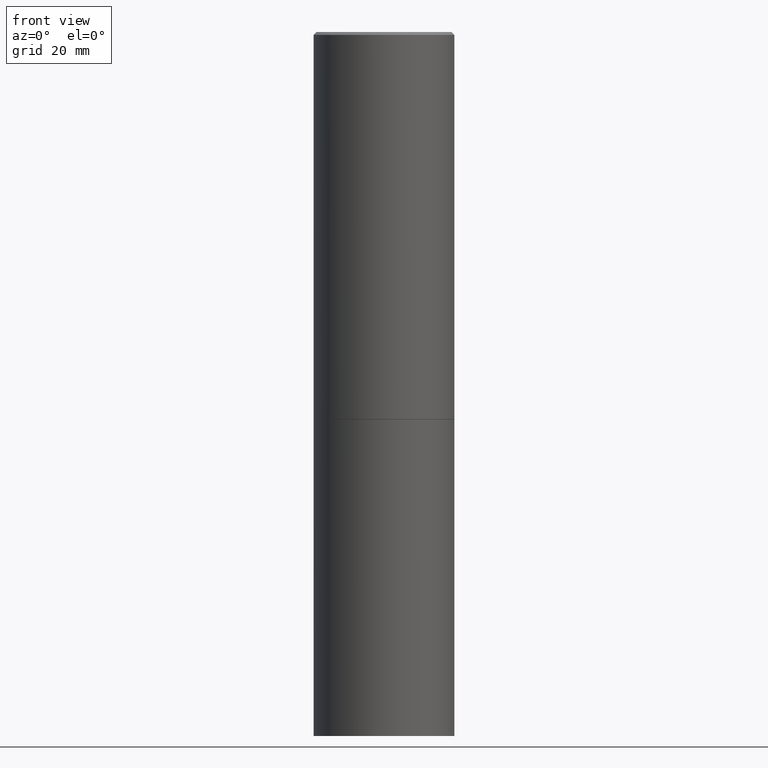
[diagram: clean part render]
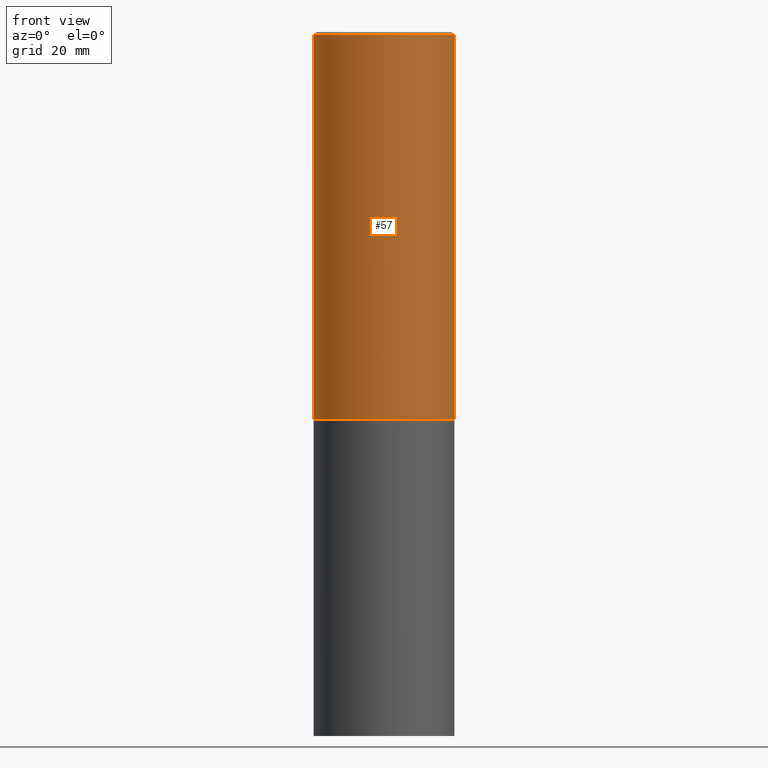
[diagram: same view with one face highlighted and labeled with its STEP entity id]
A machine part, front view. The second image highlights one B-rep face of the part: STEP entity #57.
In plain terms, the highlighted cylindrical surface (partial cylindrical patch) has radius 12.7 mm, axis along (-0, 0, 1).
Its self-contained STEP definition (entity closure, byte-faithful):
#4 = CIRCLE ( 'NONE', #289, 0.4999999999999996114 ) ;
#6 = AXIS2_PLACEMENT_3D ( 'NONE', #139, #183, #70 ) ;
#24 = DIRECTION ( 'NONE',  ( -2.445468806185136597E-29, 3.491481338843145583E-15, 1.000000000000000000 ) ) ;
#26 = VECTOR ( 'NONE', #64, 39.37007874015748143 ) ;
#41 = CARTESIAN_POINT ( 'NONE',  ( -0.4999999999999996114, 3.421651712066267296E-15, -0.02000000000000010797 ) ) ;
#49 = VERTEX_POINT ( 'NONE', #61 ) ;
#54 = DIRECTION ( 'NONE',  ( -2.445468806185136877E-29, 3.491481338843145188E-15, 1.000000000000000000 ) ) ;
#57 = ADVANCED_FACE ( 'NONE', ( #272 ), #349, .T. ) ;
#59 = VECTOR ( 'NONE', #54, 39.37007874015748143 ) ;
#61 = CARTESIAN_POINT ( 'NONE',  ( 0.5000000000000001110, -1.308956353932294179E-14, -2.749000000000000110 ) ) ;
#64 = DIRECTION ( 'NONE',  ( -2.445468806185136877E-29, 3.491481338843145188E-15, 1.000000000000000000 ) ) ;
#70 = DIRECTION ( 'NONE',  ( 1.000000000000000000, -6.982962677686267499E-15, 4.876176775795936353E-29 ) ) ;
#76 = ORIENTED_EDGE ( 'NONE', *, *, #281, .F. ) ;
#93 = EDGE_CURVE ( 'NONE', #259, #149, #217, .T. ) ;
#118 = ORIENTED_EDGE ( 'NONE', *, *, #240, .T. ) ;
#119 = AXIS2_PLACEMENT_3D ( 'NONE', #253, #24, #341 ) ;
#139 = CARTESIAN_POINT ( 'NONE',  ( 0.000000000000000000, 0.000000000000000000, 0.000000000000000000 ) ) ;
#142 = CARTESIAN_POINT ( 'NONE',  ( -0.4999999999999998335, 3.552713678800499746E-15, -2.459467545127452330E-29 ) ) ;
#149 = VERTEX_POINT ( 'NONE', #41 ) ;
#181 = ORIENTED_EDGE ( 'NONE', *, *, #286, .T. ) ;
#183 = DIRECTION ( 'NONE',  ( -2.445468806185136597E-29, 3.491481338843145583E-15, 1.000000000000000000 ) ) ;
#195 = CARTESIAN_POINT ( 'NONE',  ( 4.890937612370299433E-31, -6.982962677686328587E-17, -0.02000000000000010797 ) ) ;
#198 = VERTEX_POINT ( 'NONE', #323 ) ;
#217 = LINE ( 'NONE', #142, #26 ) ;
#229 = CARTESIAN_POINT ( 'NONE',  ( 0.4999999999999998335, -3.491481338843132566E-15, 2.438088387897967336E-29 ) ) ;
#233 = DIRECTION ( 'NONE',  ( -2.445468806185136597E-29, 3.491481338843145583E-15, 1.000000000000000000 ) ) ;
#240 = EDGE_CURVE ( 'NONE', #49, #198, #364, .T. ) ;
#253 = CARTESIAN_POINT ( 'NONE',  ( 6.722593748202941159E-29, -9.598082200479808430E-15, -2.749000000000000110 ) ) ;
#259 = VERTEX_POINT ( 'NONE', #311 ) ;
#272 = FACE_OUTER_BOUND ( 'NONE', #273, .T. ) ;
#273 = EDGE_LOOP ( 'NONE', ( #279, #181, #118, #76 ) ) ;
#279 = ORIENTED_EDGE ( 'NONE', *, *, #93, .F. ) ;
#281 = EDGE_CURVE ( 'NONE', #149, #198, #4, .T. ) ;
#286 = EDGE_CURVE ( 'NONE', #259, #49, #303, .T. ) ;
#289 = AXIS2_PLACEMENT_3D ( 'NONE', #195, #233, #361 ) ;
#303 = CIRCLE ( 'NONE', #119, 0.5000000000000001110 ) ;
#311 = CARTESIAN_POINT ( 'NONE',  ( -0.5000000000000001110, -1.281242234827831779E-15, -2.749000000000000110 ) ) ;
#323 = CARTESIAN_POINT ( 'NONE',  ( 0.4999999999999996114, -3.500078625662626318E-15, -0.02000000000000010797 ) ) ;
#341 = DIRECTION ( 'NONE',  ( 1.000000000000000000, -6.982962677686265133E-15, 0.000000000000000000 ) ) ;
#349 = CYLINDRICAL_SURFACE ( 'NONE', #6, 0.4999999999999998335 ) ;
#361 = DIRECTION ( 'NONE',  ( 1.000000000000000000, -6.982962677686266711E-15, 0.000000000000000000 ) ) ;
#364 = LINE ( 'NONE', #229, #59 ) ;